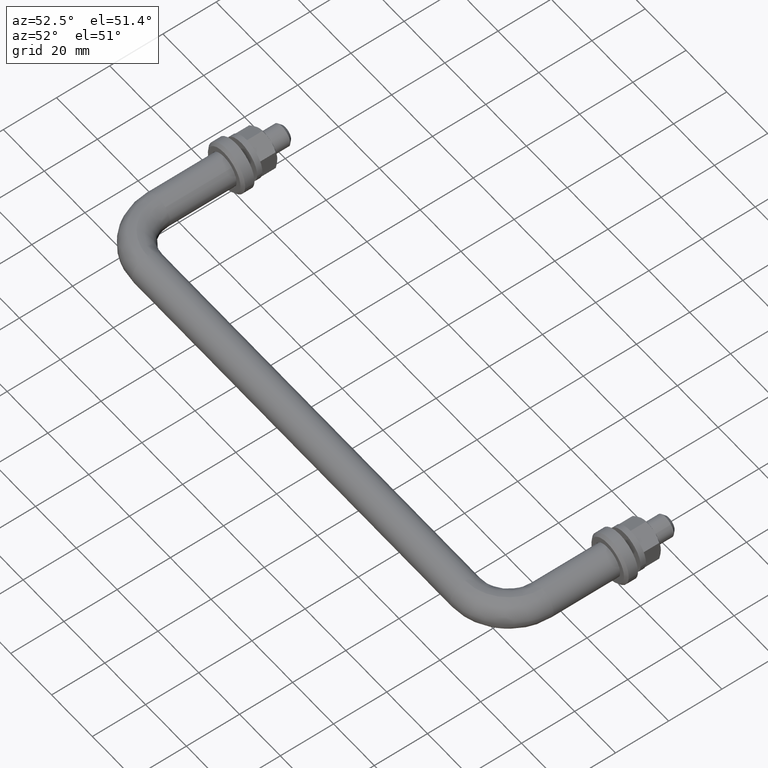
[diagram: clean part render]
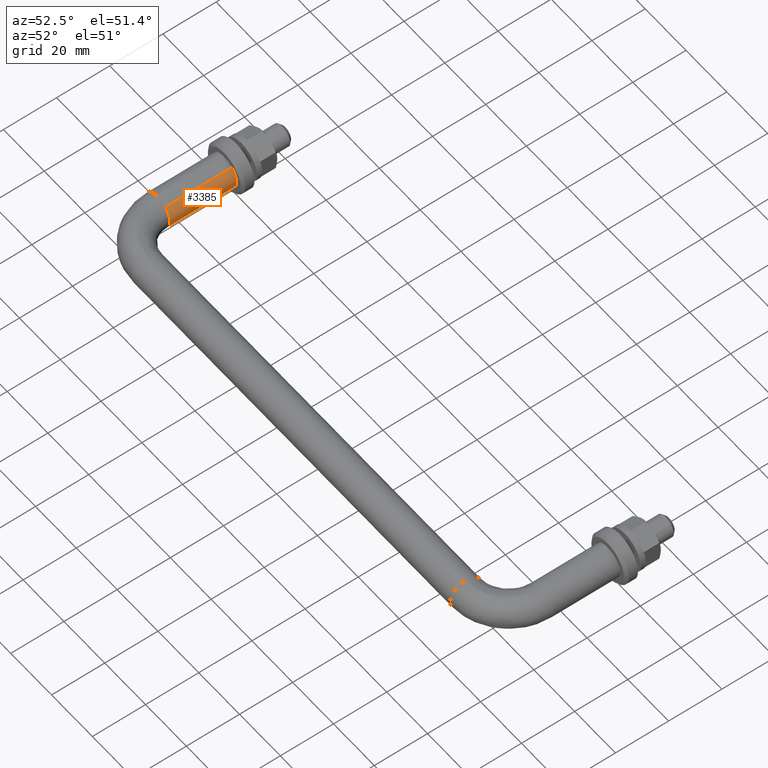
[diagram: same view with one face highlighted and labeled with its STEP entity id]
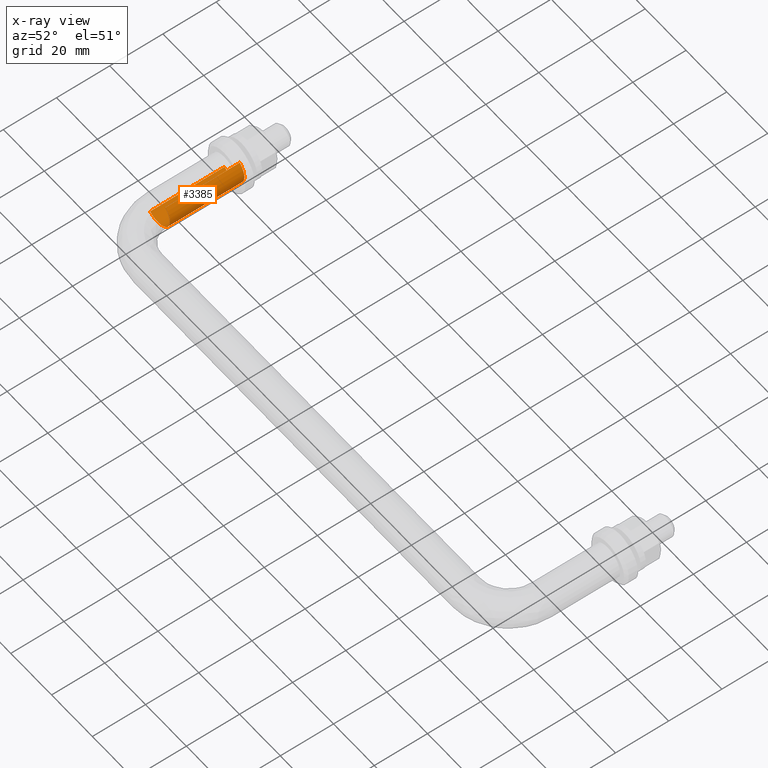
[diagram: x-ray of the same camera — body ghosted, the highlighted face saturated]
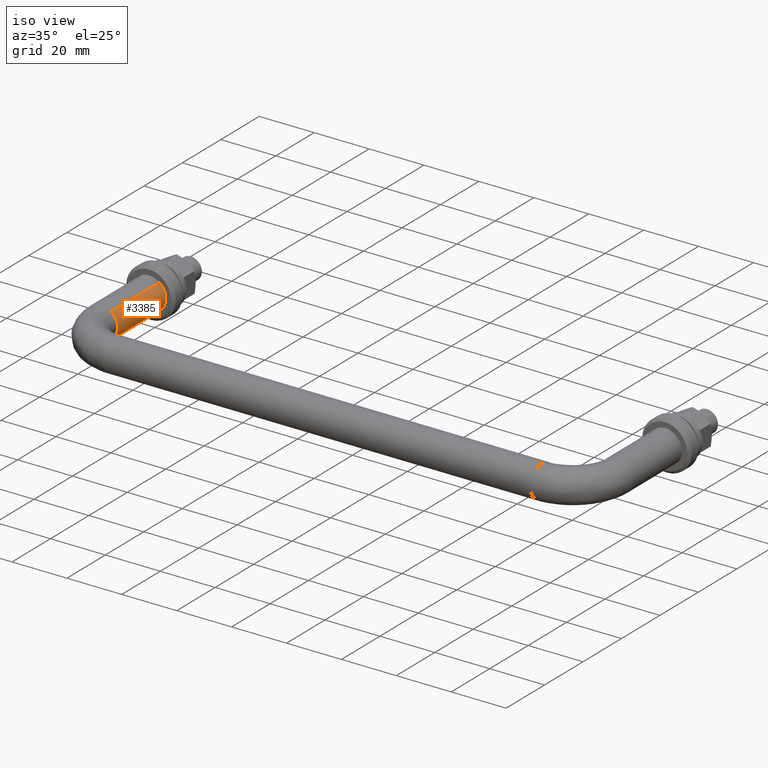
[diagram: same view with one face highlighted and labeled with its STEP entity id]
A machine part, auxiliary view. The second image highlights one B-rep face of the part: STEP entity #3385.
The next image is the same camera in x-ray: the body ghosted, the highlighted face saturated — about 0% of this face is hidden behind the body in this view.
A second angle (iso view) of the same face is appended — the face is thin or edge-on in the first view.
In plain terms, the highlighted face is a freeform B-spline surface patch.
Its self-contained STEP definition (entity closure, byte-faithful):
#3194=CARTESIAN_POINT('',(3.735087819828864,-28.0,4.695648941111983));
#3195=VERTEX_POINT('',#3194);
#3211=CARTESIAN_POINT('',(3.735087819828823,-5.551115E-017,4.695648941112013));
#3212=VERTEX_POINT('',#3211);
#3213=CARTESIAN_POINT('',(3.735087819828823,-5.551115E-017,4.695648941112013));
#3214=CARTESIAN_POINT('',(3.735087819828864,-28.0,4.695648941111983));
#3215=QUASI_UNIFORM_CURVE('',1,(#3213,#3214),.UNSPECIFIED.,.F.,.U.);
#3216=EDGE_CURVE('',#3212,#3195,#3215,.T.);
#3235=CARTESIAN_POINT('',(-3.735087819828822,1.165734E-015,-4.695648941112014));
#3236=VERTEX_POINT('',#3235);
#3250=CARTESIAN_POINT('',(-3.735087819828852,-28.0,-4.695648941111986));
#3251=VERTEX_POINT('',#3250);
#3252=CARTESIAN_POINT('',(-3.735087819828822,1.165734E-015,-4.695648941112014));
#3253=CARTESIAN_POINT('',(-3.735087819828852,-28.0,-4.695648941111986));
#3254=QUASI_UNIFORM_CURVE('',1,(#3252,#3253),.UNSPECIFIED.,.F.,.U.);
#3255=EDGE_CURVE('',#3236,#3251,#3254,.T.);
#3288=CARTESIAN_POINT('',(-3.735087819825715,0.700000000034946,-4.695648941114483));
#3289=CARTESIAN_POINT('',(0.960561121288767,0.700000000034947,-8.430736760940198));
#3290=CARTESIAN_POINT('',(4.695648941114483,0.700000000034947,-3.735087819825715));
#3291=CARTESIAN_POINT('',(8.430736760940198,0.700000000034947,0.960561121288767));
#3292=CARTESIAN_POINT('',(3.735087819825715,0.700000000034947,4.695648941114483));
#3293=CARTESIAN_POINT('',(-3.735087819825712,-28.717500001433621,-4.695648941114483));
#3294=CARTESIAN_POINT('',(0.960561121288771,-28.717500001433617,-8.430736760940198));
#3295=CARTESIAN_POINT('',(4.695648941114486,-28.717500001433621,-3.735087819825715));
#3296=CARTESIAN_POINT('',(8.430736760940201,-28.717500001433617,0.960561121288767));
#3297=CARTESIAN_POINT('',(3.735087819825719,-28.717500001433621,4.695648941114483));
#3305=(BOUNDED_SURFACE()B_SPLINE_SURFACE(2,1,((#3288,#3293),(#3289,#3294),(#3290,#3295),(#3291,#3296),(#3292,#3297)),.UNSPECIFIED.,.F.,.F.,.U.)B_SPLINE_SURFACE_WITH_KNOTS((3,2,3),(2,2),(0.0,9.941125496954280,19.882250993908560),(0.0,29.417500001468571),.UNSPECIFIED.)GEOMETRIC_REPRESENTATION_ITEM()RATIONAL_B_SPLINE_SURFACE(((1.0,1.0),(0.707106781186548,0.707106781186548),(1.0,1.0),(0.707106781186548,0.707106781186548),(1.0,1.0)))REPRESENTATION_ITEM('')SURFACE());
#3306=CARTESIAN_POINT('',(6.000000000000004,-28.0,0.0));
#3307=VERTEX_POINT('',#3306);
#3308=CARTESIAN_POINT('',(3.735087819828864,-28.0,4.695648941111983));
#3309=CARTESIAN_POINT('',(6.000000000000003,-27.999999999999996,2.894056444900473));
#3310=CARTESIAN_POINT('',(6.000000000000004,-28.0,0.0));
#3318=(BOUNDED_CURVE()B_SPLINE_CURVE(2,(#3308,#3309,#3310),.UNSPECIFIED.,.F.,.U.)B_SPLINE_CURVE_WITH_KNOTS((3,3),(0.857863877391648,1.0),.UNSPECIFIED.)CURVE()GEOMETRIC_REPRESENTATION_ITEM()RATIONAL_B_SPLINE_CURVE((0.856305618644005,0.833477174158305,1.0))REPRESENTATION_ITEM(''));
#3319=EDGE_CURVE('',#3195,#3307,#3318,.T.);
#3320=ORIENTED_EDGE('',*,*,#3319,.T.);
#3321=CARTESIAN_POINT('',(0.418399509453649,-28.000000000001169,-5.985394043042524));
#3322=VERTEX_POINT('',#3321);
#3323=CARTESIAN_POINT('',(6.000000000000004,-28.0,0.0));
#3324=CARTESIAN_POINT('',(6.000000000000003,-27.999999999999993,-5.595221083597852));
#3325=CARTESIAN_POINT('',(0.418399509453649,-28.000000000001165,-5.985394043042524));
#3333=(BOUNDED_CURVE()B_SPLINE_CURVE(2,(#3323,#3324,#3325),.UNSPECIFIED.,.F.,.U.)B_SPLINE_CURVE_WITH_KNOTS((3,3),(0.0,0.237833686535077),.UNSPECIFIED.)CURVE()GEOMETRIC_REPRESENTATION_ITEM()RATIONAL_B_SPLINE_CURVE((1.0,0.721360504033886,0.972879876386946))REPRESENTATION_ITEM(''));
#3334=EDGE_CURVE('',#3307,#3322,#3333,.T.);
#3335=ORIENTED_EDGE('',*,*,#3334,.T.);
#3336=CARTESIAN_POINT('',(0.418399509453649,-28.000000000001172,-5.985394043042525));
#3337=CARTESIAN_POINT('',(0.209454695249271,-27.999999999999996,-6.0));
#3338=CARTESIAN_POINT('',(3.428898E-015,-28.0,-6.0));
#3339=CARTESIAN_POINT('',(-2.095293800533736,-28.000000000000004,-5.999999999999999));
#3340=CARTESIAN_POINT('',(-3.735087819828852,-28.0,-4.695648941111987));
#3348=(BOUNDED_CURVE()B_SPLINE_CURVE(2,(#3336,#3337,#3338,#3339,#3340),.UNSPECIFIED.,.F.,.U.)B_SPLINE_CURVE_WITH_KNOTS((3,2,3),(0.237833686535077,0.250000000000000,0.357863877391648),.UNSPECIFIED.)CURVE()GEOMETRIC_REPRESENTATION_ITEM()RATIONAL_B_SPLINE_CURVE((0.972879876386946,0.985746277152662,1.0,0.873629607028243,0.856305618644005))REPRESENTATION_ITEM(''));
#3349=EDGE_CURVE('',#3322,#3251,#3348,.T.);
#3350=ORIENTED_EDGE('',*,*,#3349,.T.);
#3351=ORIENTED_EDGE('',*,*,#3255,.F.);
#3352=CARTESIAN_POINT('',(6.0,0.0,0.0));
#3353=VERTEX_POINT('',#3352);
#3354=CARTESIAN_POINT('',(6.0,0.0,0.0));
#3355=CARTESIAN_POINT('',(6.0,0.0,-6.0));
#3356=CARTESIAN_POINT('',(0.0,0.0,-6.0));
#3357=CARTESIAN_POINT('',(-2.095293800533689,0.0,-6.000000000000001));
#3358=CARTESIAN_POINT('',(-3.735087819828822,1.165734E-015,-4.695648941112014));
#3366=(BOUNDED_CURVE()B_SPLINE_CURVE(2,(#3354,#3355,#3356,#3357,#3358),.UNSPECIFIED.,.F.,.U.)B_SPLINE_CURVE_WITH_KNOTS((3,2,3),(0.0,0.250000000000000,0.357863877391645),.UNSPECIFIED.)CURVE()GEOMETRIC_REPRESENTATION_ITEM()RATIONAL_B_SPLINE_CURVE((1.0,0.707106781186548,1.0,0.873629607028245,0.856305618644006))REPRESENTATION_ITEM(''));
#3367=EDGE_CURVE('',#3353,#3236,#3366,.T.);
#3368=ORIENTED_EDGE('',*,*,#3367,.F.);
#3369=CARTESIAN_POINT('',(3.735087819828823,-5.551115E-017,4.695648941112012));
#3370=CARTESIAN_POINT('',(6.0,0.0,2.894056444900531));
#3371=CARTESIAN_POINT('',(6.0,0.0,0.0));
#3379=(BOUNDED_CURVE()B_SPLINE_CURVE(2,(#3369,#3370,#3371),.UNSPECIFIED.,.F.,.U.)B_SPLINE_CURVE_WITH_KNOTS((3,3),(0.857863877391646,1.0),.UNSPECIFIED.)CURVE()GEOMETRIC_REPRESENTATION_ITEM()RATIONAL_B_SPLINE_CURVE((0.856305618644006,0.833477174158302,1.0))REPRESENTATION_ITEM(''));
#3380=EDGE_CURVE('',#3212,#3353,#3379,.T.);
#3381=ORIENTED_EDGE('',*,*,#3380,.F.);
#3382=ORIENTED_EDGE('',*,*,#3216,.T.);
#3383=EDGE_LOOP('',(#3320,#3335,#3350,#3351,#3368,#3381,#3382));
#3384=FACE_OUTER_BOUND('',#3383,.T.);
#3385=ADVANCED_FACE('',(#3384),#3305,.T.);